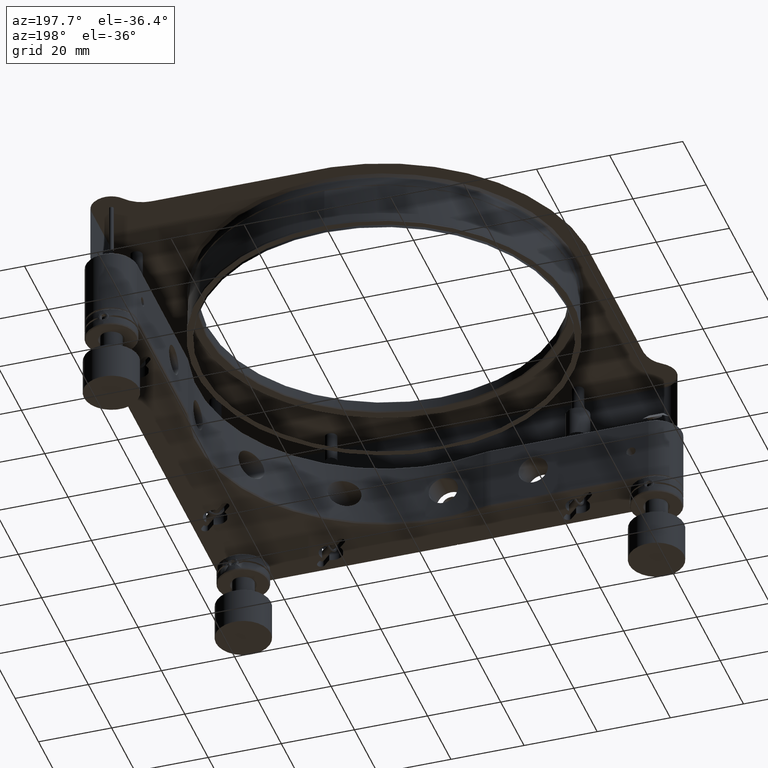
[diagram: clean part render]
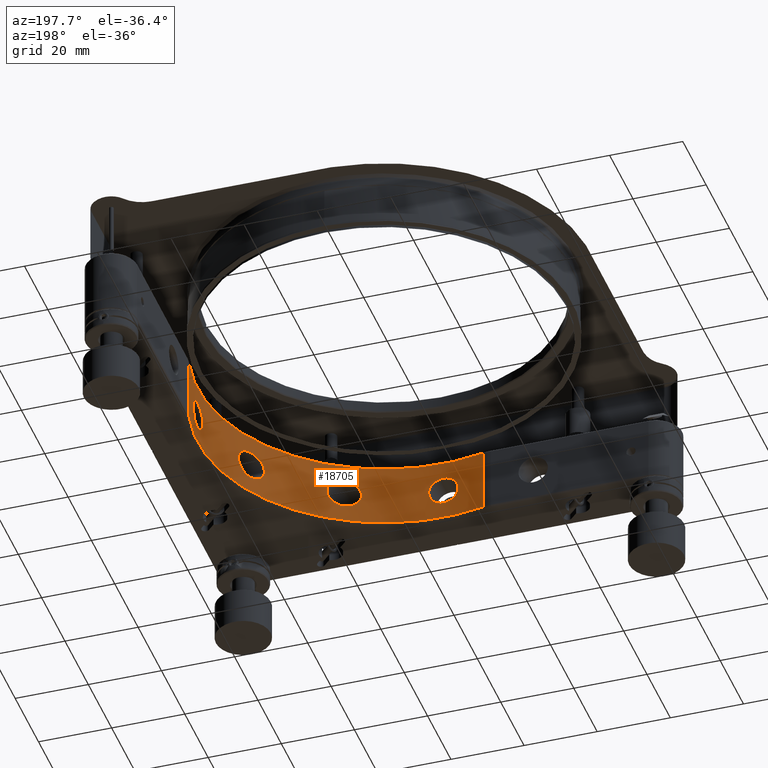
[diagram: same view with one face highlighted and labeled with its STEP entity id]
A machine part, auxiliary view. The second image highlights one B-rep face of the part: STEP entity #18705.
In plain terms, the highlighted cylindrical surface (partial cylindrical patch) has radius 51 mm, axis along (0, 0, 1).
Its self-contained STEP definition (entity closure, byte-faithful):
#22 = CARTESIAN_POINT ( 'NONE',  ( 0.2643418516428152065, -51.00000000000000000, -3.999999999999994227 ) ) ;
#139 = CARTESIAN_POINT ( 'NONE',  ( 1.041460305965775657, -50.99000936776741355, -3.870874825746110304 ) ) ;
#245 = CARTESIAN_POINT ( 'NONE',  ( 2.438328192093976554, -50.94214254767108230, 3.181643216295293453 ) ) ;
#329 = CARTESIAN_POINT ( 'NONE',  ( 42.13692247388138412, -28.73150742501794497, -1.466203192968444036 ) ) ;
#351 = CARTESIAN_POINT ( 'NONE',  ( 22.14287379948190448, -45.94281260937063394, 2.812044164580193684 ) ) ;
#354 = CARTESIAN_POINT ( 'NONE',  ( 1.775176064957068700, -50.96967208368307922, -3.594095108832024543 ) ) ;
#373 = ORIENTED_EDGE ( 'NONE', *, *, #14231, .F. ) ;
#417 = CARTESIAN_POINT ( 'NONE',  ( 50.87322838842136008, 3.595085773231252446, 1.772907567325785694 ) ) ;
#455 = CARTESIAN_POINT ( 'NONE',  ( 21.25809575348906222, -46.35849392485160081, 1.440376870804307208 ) ) ;
#528 = CARTESIAN_POINT ( 'NONE',  ( 50.99794641787443794, -0.5242465711881814094, -3.974054142921797261 ) ) ;
#545 = CARTESIAN_POINT ( 'NONE',  ( 46.45507703724306481, -21.04592532881353861, 0.6656972642966199061 ) ) ;
#567 = CARTESIAN_POINT ( 'NONE',  ( 21.95968344084829837, -46.03047269666583929, 2.613345173628228935 ) ) ;
#581 = CIRCLE ( 'NONE', #6379, 51.00000000000000711 ) ;
#635 = CARTESIAN_POINT ( 'NONE',  ( 51.00000004458414082, -0.2643327941617260590, 4.000000568447709348 ) ) ;
#676 = CARTESIAN_POINT ( 'NONE',  ( 22.75176425591999418, -45.64448943445603391, 3.318449024854553731 ) ) ;
#738 = CARTESIAN_POINT ( 'NONE',  ( 50.96109126579183624, 2.003623896652389380, 3.471856737960496542 ) ) ;
#851 = CARTESIAN_POINT ( 'NONE',  ( 50.96109145979701083, -2.003619012529236354, -3.471859581115384508 ) ) ;
#874 = CARTESIAN_POINT ( 'NONE',  ( 46.42070792123861622, -21.12158115173890138, -1.018848955257730449 ) ) ;
#961 = CARTESIAN_POINT ( 'NONE',  ( 50.84494052886554982, 3.974246806046050295, -0.5232299262243520488 ) ) ;
#1034 = EDGE_LOOP ( 'NONE', ( #8706, #373, #10215, #6912 ) ) ;
#1193 = CARTESIAN_POINT ( 'NONE',  ( 50.99000936776744908, 1.041460305965788091, -3.870874825746113412 ) ) ;
#1268 = CARTESIAN_POINT ( 'NONE',  ( -3.470864942281873144, -50.88196700384143867, -2.005553443854874107 ) ) ;
#1390 = CARTESIAN_POINT ( 'NONE',  ( -1.035550865290829181, -50.99012657086851874, -3.872412065324646768 ) ) ;
#1503 = CARTESIAN_POINT ( 'NONE',  ( 22.04892886690477383, -45.98794758452353193, -2.713491968009111854 ) ) ;
#1594 = CARTESIAN_POINT ( 'NONE',  ( 42.86481673129989645, -27.63430815597656931, 3.021030406531487689 ) ) ;
#1702 = FACE_BOUND ( 'NONE', #2830, .T. ) ;
#1708 = CARTESIAN_POINT ( 'NONE',  ( 45.40950592458667501, -23.21720212518657434, 3.589885126458869813 ) ) ;
#1736 = CARTESIAN_POINT ( 'NONE',  ( 4.000180473207248788, -50.84288107704849580, -0.2581632617003279395 ) ) ;
#1769 = VECTOR ( 'NONE', #18142, 1000.000000000000000 ) ;
#1823 = CARTESIAN_POINT ( 'NONE',  ( 42.99020142785091991, -27.43906843653294558, 3.180114322606836907 ) ) ;
#1851 = CARTESIAN_POINT ( 'NONE',  ( 3.471469353709270678, -50.88192132246089017, -2.004192328261631850 ) ) ;
#1962 = CARTESIAN_POINT ( 'NONE',  ( 24.14988693114169038, -44.92061231903917928, 3.916531526169040767 ) ) ;
#2070 = CARTESIAN_POINT ( 'NONE',  ( 25.00000000000000711, -44.45222154178574669, -3.999999999999991562 ) ) ;
#2071 = CARTESIAN_POINT ( 'NONE',  ( 0.5242542785430721608, -50.99794633650007114, 3.974053103854824798 ) ) ;
#2140 = CARTESIAN_POINT ( 'NONE',  ( 50.98426826390096522, -1.289606195030928326, -3.795475553868472574 ) ) ;
#2179 = CARTESIAN_POINT ( 'NONE',  ( 1.290741033015676775, -50.98423981943308547, -3.795096480804716510 ) ) ;
#2242 = CARTESIAN_POINT ( 'NONE',  ( 50.84288107702916903, -4.000180473452869201, 0.2581636155114718778 ) ) ;
#2285 = CARTESIAN_POINT ( 'NONE',  ( 21.21189721563936459, -46.37962752371469577, -1.314374127519348567 ) ) ;
#2354 = CARTESIAN_POINT ( 'NONE',  ( 50.93176742196465057, -2.643856155769596317, 3.013257923311236652 ) ) ;
#2371 = CARTESIAN_POINT ( 'NONE',  ( 46.46827430110300128, -21.01672661800330744, -0.4622976535235896467 ) ) ;
#2392 = CARTESIAN_POINT ( 'NONE',  ( 28.83500713554753503, -42.06599844814912359, -1.171254001327689087 ) ) ;
#2460 = CARTESIAN_POINT ( 'NONE',  ( 50.85873265471013838, 3.794643742710438694, 1.291712748671045130 ) ) ;
#2480 = CARTESIAN_POINT ( 'NONE',  ( 46.39563288142682751, -21.17664763398707706, 1.208236747625940133 ) ) ;
#2631 = VERTEX_POINT ( 'NONE', #9541 ) ;
#2793 = CARTESIAN_POINT ( 'NONE',  ( 50.91102904633111592, 3.016956970046681175, -2.639634276127742929 ) ) ;
#2830 = EDGE_LOOP ( 'NONE', ( #13472 ) ) ;
#2844 = EDGE_CURVE ( 'NONE', #4830, #4830, #8106, .T. ) ;
#2865 = CARTESIAN_POINT ( 'NONE',  ( -3.012896189205499731, -50.91126171441915460, -2.643950649210252912 ) ) ;
#2892 = VERTEX_POINT ( 'NONE', #11099 ) ;
#3101 = CARTESIAN_POINT ( 'NONE',  ( -3.974246734816910376, -50.84494053457044060, 0.5232306414502037040 ) ) ;
#3216 = CARTESIAN_POINT ( 'NONE',  ( 24.50570513562140107, -44.73021375861674898, -3.999999999999990674 ) ) ;
#3415 = CARTESIAN_POINT ( 'NONE',  ( 44.64255807279423749, -24.66007461377106935, 3.993157742379626285 ) ) ;
#3443 = CARTESIAN_POINT ( 'NONE',  ( -1.041453490481846433, -50.99000950939018395, 3.870876686039689041 ) ) ;
#3528 = CARTESIAN_POINT ( 'NONE',  ( 45.73823904516289218, -22.56242002078001008, 3.182554437311829965 ) ) ;
#3557 = CARTESIAN_POINT ( 'NONE',  ( 1.289612638224308050, -50.98426809839455132, 3.795473336771413297 ) ) ;
#3640 = CARTESIAN_POINT ( 'NONE',  ( 41.98925694458817048, -28.94655086885971329, -0.6666669425110099967 ) ) ;
#3663 = CARTESIAN_POINT ( 'NONE',  ( 25.97655679833705378, -43.88959329869727100, -3.886699752790084617 ) ) ;
#3666 = CARTESIAN_POINT ( 'NONE',  ( -3.182140358833142280, -50.90083496153494735, 2.437594978615438279 ) ) ;
#3694 = ORIENTED_EDGE ( 'NONE', *, *, #3974, .F. ) ;
#3756 = CARTESIAN_POINT ( 'NONE',  ( 44.45222154178573959, -24.99999999999999289, -3.999999999999991562 ) ) ;
#3847 = CARTESIAN_POINT ( 'NONE',  ( 50.93174824369287279, 2.644075164088409924, 3.012786885334071574 ) ) ;
#3863 = CARTESIAN_POINT ( 'NONE',  ( 44.59120638312982265, -24.75287260166489389, -3.999999999999991562 ) ) ;
#3883 = CARTESIAN_POINT ( 'NONE',  ( 29.00387413615989729, -41.94967595931453275, 0.2195120870971091209 ) ) ;
#3974 = EDGE_CURVE ( 'NONE', #19948, #19948, #13017, .T. ) ;
#3993 = CARTESIAN_POINT ( 'NONE',  ( 21.03959349200306761, -46.45794227444960001, 0.6282988356155494447 ) ) ;
#4007 = DIRECTION ( 'NONE',  ( 1.000000000000000000, 0.000000000000000000, 6.802837160693364103E-17 ) ) ;
#4079 = CARTESIAN_POINT ( 'NONE',  ( 46.47840516126743182, -20.99423522434712552, -0.1823093768099479095 ) ) ;
#4100 = CARTESIAN_POINT ( 'NONE',  ( 23.19705833438060694, -45.41980489963018641, 3.579953804435291875 ) ) ;
#4167 = CARTESIAN_POINT ( 'NONE',  ( 50.98426809839455132, 1.289612638224332919, 3.795473336771408857 ) ) ;
#4275 = CARTESIAN_POINT ( 'NONE',  ( 50.91126156222613730, 3.012898732924461864, 2.643947714107129698 ) ) ;
#4297 = CARTESIAN_POINT ( 'NONE',  ( 46.28536281821492793, -21.41679356844925763, -1.799288961521885444 ) ) ;
#4349 = VERTEX_POINT ( 'NONE', #13534 ) ;
#4499 = CARTESIAN_POINT ( 'NONE',  ( 50.85857193245664831, 3.796805699459112393, -1.285668065311143415 ) ) ;
#4575 = CARTESIAN_POINT ( 'NONE',  ( -1.773926735754461692, -50.96971530703164888, -3.594704821602309419 ) ) ;
#4615 = CARTESIAN_POINT ( 'NONE',  ( 51.00000000000000711, 4.878909776184769953E-15, -3.999999999999994671 ) ) ;
#4621 = VERTEX_POINT ( 'NONE', #19112 ) ;
#4699 = CIRCLE ( 'NONE', #17779, 50.99999999999997868 ) ;
#4811 = CARTESIAN_POINT ( 'NONE',  ( -3.974349236055138235, -50.84493296766510184, -0.5232957574075265406 ) ) ;
#4815 = B_SPLINE_CURVE_WITH_KNOTS ( 'NONE', 3,
 ( #19643, #7451, #528, #16437, #2140, #10973, #851, #14189, #14609, #5655, #9046, #19751, #10864, #17819, #21371, #17928, #11191, #2242, #21587, #9154, #19538, #17715, #5972, #21264, #7335, #2354, #21152, #9261, #16005, #12482, #19433, #9366, #635, #14507, #12918, #16117, #4167, #16330, #738, #11079, #3847, #4275, #21476, #10762, #417, #2460, #18147, #14296, #14947, #18600, #961, #9591, #4499, #7882, #11533, #20440, #2793, #13485, #18256, #8113, #20202, #18490, #1193, #22164, #11418, #4615 ),
 .UNSPECIFIED., .T., .F.,
 ( 4, 2, 2, 2, 2, 2, 2, 2, 2, 2, 2, 2, 2, 2, 2, 2, 2, 2, 2, 2, 2, 2, 2, 2, 2, 2, 2, 2, 2, 2, 2, 2, 4 ),
 ( 0.000000000000000000, 0.0007817464588609633787, 0.001563492917721926324, 0.002345239376582889702, 0.003126985835443852647, 0.003908732294304815592, 0.004690478753165779405, 0.005472225212026743217, 0.006253971670887705295, 0.007035718129748667372, 0.007817464588609629450, 0.008599211047470594130, 0.009380957506331557075, 0.01016270396519252175, 0.01094445042405348470, 0.01172619688291444764, 0.01250794334177541059, 0.01328968980063637353, 0.01407143625949733648, 0.01485318271835829942, 0.01563492917721926237, 0.01641667563608022531, 0.01719842209494118826, 0.01798016855380215120, 0.01876191501266311762, 0.01954366147152408056, 0.02032540793038504351, 0.02110715438924600645, 0.02188890084810697287, 0.02267064730696793581, 0.02345239376582889876, 0.02423414022468986170, 0.02501588668355082118 ),
 .UNSPECIFIED. ) ;
#4830 = VERTEX_POINT ( 'NONE', #18463 ) ;
#5120 = CARTESIAN_POINT ( 'NONE',  ( 42.07354800861015320, -28.82399538433995190, -1.205466988610053303 ) ) ;
#5234 = CARTESIAN_POINT ( 'NONE',  ( 42.23155187309143344, -28.59216517386449752, 1.780635445795642591 ) ) ;
#5344 = CARTESIAN_POINT ( 'NONE',  ( 45.28911587951181161, -23.45141848776656346, 3.696762460761027658 ) ) ;
#5372 = CARTESIAN_POINT ( 'NONE',  ( 3.182142488891115839, -50.90083482733105313, -2.437592160883215175 ) ) ;
#5481 = CARTESIAN_POINT ( 'NONE',  ( 0.2643499978827399399, -50.99999995541441677, 3.999999431533800553 ) ) ;
#5565 = CARTESIAN_POINT ( 'NONE',  ( 41.94819773876479019, -29.00601294512484429, 0.1775567689913213898 ) ) ;
#5587 = CARTESIAN_POINT ( 'NONE',  ( 27.31612651793911084, -43.06845577151160143, -3.270735583096520571 ) ) ;
#5588 = CARTESIAN_POINT ( 'NONE',  ( 2.643859677956250209, -50.93176723734178779, -3.013254797407388885 ) ) ;
#5655 = CARTESIAN_POINT ( 'NONE',  ( 50.91126171441917592, -3.012896189205488628, -2.643950649210245807 ) ) ;
#5673 = CARTESIAN_POINT ( 'NONE',  ( 44.72903172122643412, -24.50288098466206677, -3.976800182109562432 ) ) ;
#5694 = CARTESIAN_POINT ( 'NONE',  ( 23.90786857165882395, -45.04981533723354659, 3.856267172187326953 ) ) ;
#5708 = CARTESIAN_POINT ( 'NONE',  ( 0.000000000000000000, 0.000000000000000000, 8.699999999999992184 ) ) ;
#5800 = CARTESIAN_POINT ( 'NONE',  ( 28.44251452986881645, -42.33267660686850320, 2.053817482602312339 ) ) ;
#5818 = VERTEX_POINT ( 'NONE', #14244 ) ;
#5906 = CARTESIAN_POINT ( 'NONE',  ( 28.14419088521808376, -42.53159603047974002, 2.486591284773677746 ) ) ;
#5972 = CARTESIAN_POINT ( 'NONE',  ( 50.88192141905476262, -3.471467953167386433, 2.004194799219288559 ) ) ;
#6102 = CARTESIAN_POINT ( 'NONE',  ( 45.93297508661292028, -22.16328287594493673, 2.832575658237597604 ) ) ;
#6379 = AXIS2_PLACEMENT_3D ( 'NONE', #12321, #19272, #9001 ) ;
#6602 = CARTESIAN_POINT ( 'NONE',  ( -3.596608637842334311, -50.87312137945681201, 1.770051522970641500 ) ) ;
#6685 = CYLINDRICAL_SURFACE ( 'NONE', #13793, 51.00000000000000711 ) ;
#6827 = CARTESIAN_POINT ( 'NONE',  ( 21.57072514087623460, -46.21373423124951074, -2.063717170320820582 ) ) ;
#6912 = ORIENTED_EDGE ( 'NONE', *, *, #19678, .F. ) ;
#6937 = CARTESIAN_POINT ( 'NONE',  ( 1.035557716345357981, -50.99012642958663122, 3.872410210314304546 ) ) ;
#7027 = CARTESIAN_POINT ( 'NONE',  ( 42.51663757599928317, -28.16677216133664530, 2.457872710427946750 ) ) ;
#7058 = CARTESIAN_POINT ( 'NONE',  ( -3.794707603699265519E-15, -51.00000000000000711, -3.999999999999994227 ) ) ;
#7165 = CARTESIAN_POINT ( 'NONE',  ( 3.974349304430777607, -50.84493296217718239, 0.5232950534948871413 ) ) ;
#7247 = CARTESIAN_POINT ( 'NONE',  ( 42.08972716149866500, -28.80053385633270224, 1.276814643563314755 ) ) ;
#7266 = CARTESIAN_POINT ( 'NONE',  ( 27.60816768907120888, -42.88165776416249741, 3.043440688396227500 ) ) ;
#7335 = CARTESIAN_POINT ( 'NONE',  ( 50.91102919912678715, -3.016954421790179808, 2.639637229173623201 ) ) ;
#7378 = CARTESIAN_POINT ( 'NONE',  ( 24.89189507061578510, -44.51374198359376066, 4.006082388395618032 ) ) ;
#7391 = DIRECTION ( 'NONE',  ( 0.000000000000000000, 0.000000000000000000, 1.000000000000000000 ) ) ;
#7451 = CARTESIAN_POINT ( 'NONE',  ( 51.00000000000000711, -0.2643418516428144849, -3.999999999999994227 ) ) ;
#7469 = CARTESIAN_POINT ( 'NONE',  ( 46.47207966822504233, -21.00823339313170024, 0.3810347792856133564 ) ) ;
#7490 = CARTESIAN_POINT ( 'NONE',  ( 21.37559845394299529, -46.30429136610482033, -1.697951396811109737 ) ) ;
#7578 = CARTESIAN_POINT ( 'NONE',  ( 44.99378513541785196, -24.01326205359960042, -3.884380932525897112 ) ) ;
#7599 = CARTESIAN_POINT ( 'NONE',  ( 26.66805882125758842, -43.47281913016014698, -3.643834439284061588 ) ) ;
#7682 = CARTESIAN_POINT ( 'NONE',  ( 45.48582902877590328, -23.06727417906371613, -3.511666105846367181 ) ) ;
#7882 = CARTESIAN_POINT ( 'NONE',  ( 50.87312130222163375, 3.596609722746673565, -1.770049263678889151 ) ) ;
#8106 = B_SPLINE_CURVE_WITH_KNOTS ( 'NONE', 3,
 ( #3756, #10553, #17625, #13985, #13762, #8958, #12501, #20943, #19109, #14204, #8850, #329, #5120, #12162, #3640, #15584, #17507, #5565, #19448, #17399, #7247, #5234, #10214, #7027, #17169, #1594, #1823, #13870, #15468, #8736, #22440, #15697, #12046, #18989, #3415, #10330, #17284, #5344, #1708, #20830, #3528, #6102, #21718, #19883, #17838, #14314, #2480, #545, #7469, #4079, #2371, #874, #14419, #4297, #21388, #21282, #19555, #14525, #21494, #7682, #9388, #10777, #7578, #5673, #3863, #13055 ),
 .UNSPECIFIED., .T., .F.,
 ( 4, 2, 2, 2, 2, 2, 2, 2, 2, 2, 2, 2, 2, 2, 2, 2, 2, 2, 2, 2, 2, 2, 2, 2, 2, 2, 2, 2, 2, 2, 2, 2, 4 ),
 ( 0.000000000000000000, 0.001669323194138108918, 0.002503984791207167389, 0.003338646388276226076, 0.004173307985345283896, 0.005007969582414342584, 0.005842631179483401271, 0.006259961978017930181, 0.006677292776552457357, 0.007511954373621513442, 0.008346615970690569528, 0.009181277567759625613, 0.01001593916482868170, 0.01085060076189773605, 0.01168526235896679213, 0.01251992395603584995, 0.01335458555310490431, 0.01418924715017395866, 0.01502390874724301127, 0.01585857034431206736, 0.01669323194138111824, 0.01752789353845017606, 0.01836255513551923041, 0.01919721673258828476, 0.02003187832965733911, 0.02086653992672639346, 0.02170120152379544781, 0.02253586312086450216, 0.02337052471793355651, 0.02420518631500261086, 0.02503984791207166521, 0.02587450950914072303, 0.02670917110620977739 ),
 .UNSPECIFIED. ) ;
#8113 = CARTESIAN_POINT ( 'NONE',  ( 50.96088043794100741, 2.008882008245621797, -3.468752934531369458 ) ) ;
#8306 = CARTESIAN_POINT ( 'NONE',  ( -3.872274229690162883, -50.85280825444433361, 1.036291321700952617 ) ) ;
#8419 = CARTESIAN_POINT ( 'NONE',  ( 21.87437600442352093, -46.07104060837720283, -2.510619664697341769 ) ) ;
#8531 = CARTESIAN_POINT ( 'NONE',  ( 22.63162021815537273, -45.70553702955495368, -3.267753843407037451 ) ) ;
#8706 = ORIENTED_EDGE ( 'NONE', *, *, #21646, .T. ) ;
#8736 = CARTESIAN_POINT ( 'NONE',  ( 43.66406249941318407, -26.35373789006742840, 3.771958615698910222 ) ) ;
#8766 = CARTESIAN_POINT ( 'NONE',  ( 2.441791047203368592, -50.94197285554388799, -3.178916533297212688 ) ) ;
#8850 = CARTESIAN_POINT ( 'NONE',  ( 42.29464325481112752, -28.49882289555150550, -1.957584688231774228 ) ) ;
#8873 = CARTESIAN_POINT ( 'NONE',  ( 25.24714743218930479, -44.31322543337024911, -3.999999999999992450 ) ) ;
#8875 = CARTESIAN_POINT ( 'NONE',  ( -2.008877113196142705, -50.96088063299767157, 3.468755796618903542 ) ) ;
#8958 = CARTESIAN_POINT ( 'NONE',  ( 43.07976540808162014, -27.29827165653997056, -3.283130313487088614 ) ) ;
#8979 = CARTESIAN_POINT ( 'NONE',  ( 28.97754222636080712, -41.96792056883602129, 0.5062693067950541082 ) ) ;
#9001 = DIRECTION ( 'NONE',  ( 1.000000000000000000, 0.000000000000000000, 0.000000000000000000 ) ) ;
#9046 = CARTESIAN_POINT ( 'NONE',  ( 50.90107073486001354, -3.178437929604356338, -2.442678937431558062 ) ) ;
#9087 = CARTESIAN_POINT ( 'NONE',  ( 21.02148673580734695, -46.46612357740982446, -0.4998321812652857243 ) ) ;
#9088 = CARTESIAN_POINT ( 'NONE',  ( -0.5288929798147758987, -50.99790159757987595, 3.973485108474053895 ) ) ;
#9154 = CARTESIAN_POINT ( 'NONE',  ( 50.85280825444434072, -3.872274229690143343, 1.036291321700962609 ) ) ;
#9194 = CARTESIAN_POINT ( 'NONE',  ( 20.99587377673898558, -46.47766464401249920, -0.2138646988442621522 ) ) ;
#9261 = CARTESIAN_POINT ( 'NONE',  ( 50.96088063299767867, -2.008877113196118280, 3.468755796618908871 ) ) ;
#9303 = CARTESIAN_POINT ( 'NONE',  ( 27.51643537602536682, -42.94060931714819418, -3.119721791529368016 ) ) ;
#9363 = DIRECTION ( 'NONE',  ( 0.000000000000000000, 0.000000000000000000, 1.000000000000000000 ) ) ;
#9366 = CARTESIAN_POINT ( 'NONE',  ( 50.99790159757988306, -0.5288929798147503636, 3.973485108474055671 ) ) ;
#9388 = CARTESIAN_POINT ( 'NONE',  ( 45.36739485598351962, -23.29958168227874182, -3.629479299811334769 ) ) ;
#9541 = CARTESIAN_POINT ( 'NONE',  ( 51.00000000000000711, 4.851892137267207984E-15, -3.999999999999994671 ) ) ;
#9591 = CARTESIAN_POINT ( 'NONE',  ( 50.85280822814642931, 3.872274573245071405, -1.036289949996455739 ) ) ;
#9706 = CARTESIAN_POINT ( 'NONE',  ( -11.24034119093744799, -49.74590163934426812, 8.699999999999976197 ) ) ;
#9893 = CARTESIAN_POINT ( 'NONE',  ( -3.794707603699265519E-15, -51.00000000000000711, -3.999999999999994227 ) ) ;
#10130 = CARTESIAN_POINT ( 'NONE',  ( 24.01929092853620773, -44.99289986258148133, -3.911379781381151943 ) ) ;
#10214 = CARTESIAN_POINT ( 'NONE',  ( 42.31948893798674760, -28.46212186020470725, 2.020716805387625215 ) ) ;
#10215 = ORIENTED_EDGE ( 'NONE', *, *, #18307, .F. ) ;
#10330 = CARTESIAN_POINT ( 'NONE',  ( 44.90871862925317970, -24.17197266087580587, 3.921125954288148474 ) ) ;
#10355 = CARTESIAN_POINT ( 'NONE',  ( -2.441787137751331827, -50.94197304502912971, 3.178919565892265098 ) ) ;
#10471 = CARTESIAN_POINT ( 'NONE',  ( 3.470866369463427414, -50.88196690545827749, 2.005550931089963296 ) ) ;
#10553 = CARTESIAN_POINT ( 'NONE',  ( 44.17425185909757346, -25.49425479667018735, -3.999999999999990674 ) ) ;
#10578 = CARTESIAN_POINT ( 'NONE',  ( 25.49462011959083085, -44.17128306920727709, -3.976864227756935932 ) ) ;
#10580 = CARTESIAN_POINT ( 'NONE',  ( 2.003623896652364067, -50.96109126579182913, 3.471856737960501871 ) ) ;
#10762 = CARTESIAN_POINT ( 'NONE',  ( 50.88196690545824197, 3.470866369463446510, 2.005550931089959743 ) ) ;
#10777 = CARTESIAN_POINT ( 'NONE',  ( 45.12141992891680786, -23.77243122161148392, -3.815444579249795964 ) ) ;
#10797 = CARTESIAN_POINT ( 'NONE',  ( 26.89207301226206681, -43.33450195386893711, -3.533017551315582594 ) ) ;
#10864 = CARTESIAN_POINT ( 'NONE',  ( 50.87322846486917882, -3.595084698763268971, -1.772909798008139193 ) ) ;
#10904 = CARTESIAN_POINT ( 'NONE',  ( 23.43237610055898656, -45.29896016290562244, 3.688645126596147961 ) ) ;
#10973 = CARTESIAN_POINT ( 'NONE',  ( 50.96971530703165598, -1.773926735754453254, -3.594704821602307643 ) ) ;
#11013 = CARTESIAN_POINT ( 'NONE',  ( 28.78813438591593510, -42.09822155405647237, 1.313605568399647927 ) ) ;
#11079 = CARTESIAN_POINT ( 'NONE',  ( 50.94214254767107519, 2.438328192094000535, 3.181643216295288568 ) ) ;
#11099 = CARTESIAN_POINT ( 'NONE',  ( 49.74590163934428233, 11.24034119093744799, -8.699999999999953104 ) ) ;
#11185 = CARTESIAN_POINT ( 'NONE',  ( -11.24034119093744621, -49.74590163934428233, -9.000000000000001776 ) ) ;
#11191 = CARTESIAN_POINT ( 'NONE',  ( 50.84290962620590193, -3.999817592664169474, -0.2637261799324808198 ) ) ;
#11279 = CARTESIAN_POINT ( 'NONE',  ( -3.453503973595536384E-15, -51.00000000000000711, -3.999999999999994671 ) ) ;
#11418 = CARTESIAN_POINT ( 'NONE',  ( 51.00000000000000711, 0.2643418516428233112, -3.999999999999995559 ) ) ;
#11492 = CARTESIAN_POINT ( 'NONE',  ( -2.003619012529245236, -50.96109145979704635, -3.471859581115388949 ) ) ;
#11517 = VERTEX_POINT ( 'NONE', #9706 ) ;
#11533 = CARTESIAN_POINT ( 'NONE',  ( 50.88192132246089727, 3.471469353709286665, -2.004192328261634071 ) ) ;
#11733 = CARTESIAN_POINT ( 'NONE',  ( -3.999817592664185906, -50.84290962620589482, -0.2637261799324902012 ) ) ;
#11818 = FACE_OUTER_BOUND ( 'NONE', #1034, .T. ) ;
#11929 = DIRECTION ( 'NONE',  ( 1.000000000000000000, 0.000000000000000000, 0.000000000000000000 ) ) ;
#12046 = CARTESIAN_POINT ( 'NONE',  ( 44.22542260502689970, -25.40063583221816756, 3.987524441275342113 ) ) ;
#12162 = CARTESIAN_POINT ( 'NONE',  ( 42.00690502226552780, -28.92095206658455808, -0.8032171135917388627 ) ) ;
#12188 = CARTESIAN_POINT ( 'NONE',  ( 3.016956970046668296, -50.91102904633113013, -2.639634276127739376 ) ) ;
#12297 = CARTESIAN_POINT ( 'NONE',  ( 3.794643742710420931, -50.85873265471013838, 1.291712748671049349 ) ) ;
#12321 = CARTESIAN_POINT ( 'NONE',  ( 0.000000000000000000, 0.000000000000000000, -8.699999999999949551 ) ) ;
#12353 = EDGE_LOOP ( 'NONE', ( #16316 ) ) ;
#12405 = CARTESIAN_POINT ( 'NONE',  ( 21.63566396085211352, -46.18365683306001301, 2.180445090358534177 ) ) ;
#12409 = CARTESIAN_POINT ( 'NONE',  ( -1.290734677114140583, -50.98423998245103661, 3.795098663708398767 ) ) ;
#12482 = CARTESIAN_POINT ( 'NONE',  ( 50.98423998245104372, -1.290734677114113937, 3.795098663708401432 ) ) ;
#12501 = CARTESIAN_POINT ( 'NONE',  ( 42.95275304246160175, -27.49746683720516316, -3.134711865247252316 ) ) ;
#12632 = CARTESIAN_POINT ( 'NONE',  ( 26.10030315334561735, -43.81843936482649582, 3.876972756483121785 ) ) ;
#12739 = CARTESIAN_POINT ( 'NONE',  ( 21.00524009509625145, -46.47343235610433965, 0.3473589258846552230 ) ) ;
#12918 = CARTESIAN_POINT ( 'NONE',  ( 50.99794633650007114, 0.5242542785430985841, 3.974053103854824798 ) ) ;
#13017 = B_SPLINE_CURVE_WITH_KNOTS ( 'NONE', 3,
 ( #9893, #22120, #20161, #1390, #16851, #4575, #11492, #18447, #16737, #2865, #17203, #1268, #15148, #13446, #20398, #4811, #11733, #18679, #3101, #8306, #22238, #6602, #20517, #3666, #17647, #20975, #10355, #8875, #17753, #12409, #3443, #9088, #19140, #5481, #2071, #6937, #3557, #17312, #10580, #245, #21191, #19361, #21084, #10471, #17427, #12297, #13897, #7165, #19250, #1736, #14225, #19468, #14012, #14123, #1851, #5372, #12188, #5588, #8766, #15723, #354, #2179, #139, #20859, #22, #7058 ),
 .UNSPECIFIED., .T., .F.,
 ( 4, 2, 2, 2, 2, 2, 2, 2, 2, 2, 2, 2, 2, 2, 2, 2, 2, 2, 2, 2, 2, 2, 2, 2, 2, 2, 2, 2, 2, 2, 2, 2, 4 ),
 ( 0.000000000000000000, 0.0007817464588609645713, 0.001563492917721929143, 0.002345239376582894039, 0.003126985835443858285, 0.003908732294304822531, 0.004690478753165788078, 0.005472225212026752758, 0.006253971670887716570, 0.007035718129748681250, 0.007817464588609645063, 0.008599211047470608008, 0.009380957506331570953, 0.01016270396519253563, 0.01094445042405349858, 0.01172619688291446152, 0.01250794334177542273, 0.01328968980063638915, 0.01407143625949735209, 0.01485318271835831504, 0.01563492917721927625, 0.01641667563608023919, 0.01719842209494119867, 0.01798016855380216161, 0.01876191501266312109, 0.01954366147152408403, 0.02032540793038504698, 0.02110715438924600645, 0.02188890084810696940, 0.02267064730696793234, 0.02345239376582889529, 0.02423414022468985476, 0.02501588668355081771 ),
 .UNSPECIFIED. ) ;
#13055 = CARTESIAN_POINT ( 'NONE',  ( 44.45222154178573959, -24.99999999999999289, -3.999999999999991562 ) ) ;
#13446 = CARTESIAN_POINT ( 'NONE',  ( -3.794643193740715681, -50.85873269618752346, -1.291714432586568373 ) ) ;
#13472 = ORIENTED_EDGE ( 'NONE', *, *, #21066, .F. ) ;
#13485 = CARTESIAN_POINT ( 'NONE',  ( 50.93176723734175937, 2.643859677956263976, -3.013254797407393326 ) ) ;
#13534 = CARTESIAN_POINT ( 'NONE',  ( 49.74590163934427522, 11.24034119093744621, 8.700000000000008171 ) ) ;
#13649 = CARTESIAN_POINT ( 'NONE',  ( 0.000000000000000000, 0.000000000000000000, -9.000000000000001776 ) ) ;
#13762 = CARTESIAN_POINT ( 'NONE',  ( 43.34388799797844172, -26.87692683824363726, -3.540924018737713563 ) ) ;
#13793 = AXIS2_PLACEMENT_3D ( 'NONE', #13649, #20600, #11929 ) ;
#13870 = CARTESIAN_POINT ( 'NONE',  ( 43.25156113196214136, -27.02521702262672676, 3.458421309528856291 ) ) ;
#13897 = CARTESIAN_POINT ( 'NONE',  ( 3.871498313183480366, -50.85286777688099136, 1.039610945334407788 ) ) ;
#13985 = CARTESIAN_POINT ( 'NONE',  ( 43.48232582047493366, -26.65254922259305204, -3.650835261940553078 ) ) ;
#14012 = CARTESIAN_POINT ( 'NONE',  ( 3.796805699459098182, -50.85857193245669094, -1.285668065311138086 ) ) ;
#14047 = VECTOR ( 'NONE', #9363, 1000.000000000000000 ) ;
#14121 = CARTESIAN_POINT ( 'NONE',  ( 27.41312352165618549, -43.00674703191210568, 3.199712091505374278 ) ) ;
#14123 = CARTESIAN_POINT ( 'NONE',  ( 3.596609722746659354, -50.87312130222164797, -1.770049263678885376 ) ) ;
#14189 = CARTESIAN_POINT ( 'NONE',  ( 50.94214273904355395, -2.438324235223479963, -3.181646275479589558 ) ) ;
#14204 = CARTESIAN_POINT ( 'NONE',  ( 42.38713040075415961, -28.36135418054419333, -2.183944612765307713 ) ) ;
#14223 = CARTESIAN_POINT ( 'NONE',  ( 28.74513615994610305, -42.12761786467843450, -1.431095975260034292 ) ) ;
#14225 = CARTESIAN_POINT ( 'NONE',  ( 3.974246806046033420, -50.84494052886552851, -0.5232299262243468307 ) ) ;
#14231 = EDGE_CURVE ( 'NONE', #2892, #4349, #18486, .T. ) ;
#14244 = CARTESIAN_POINT ( 'NONE',  ( 25.00000000000000355, -44.45222154178573248, -3.999999999999991562 ) ) ;
#14296 = CARTESIAN_POINT ( 'NONE',  ( 50.84493296217719660, 3.974349304430793151, 0.5232950534948836996 ) ) ;
#14314 = CARTESIAN_POINT ( 'NONE',  ( 46.35329981913756825, -21.26944208285208049, 1.470048279604939001 ) ) ;
#14382 = ORIENTED_EDGE ( 'NONE', *, *, #14532, .F. ) ;
#14419 = CARTESIAN_POINT ( 'NONE',  ( 46.38373896984123945, -21.20289171657937999, -1.287935472816738702 ) ) ;
#14440 = CARTESIAN_POINT ( 'NONE',  ( 26.77971742563968149, -43.40411383577910698, 3.590682676152003872 ) ) ;
#14507 = CARTESIAN_POINT ( 'NONE',  ( 50.99999995541440256, 0.2643499978827667518, 3.999999431533799665 ) ) ;
#14525 = CARTESIAN_POINT ( 'NONE',  ( 45.80693443297594314, -22.42255694791982989, -3.070652352638731042 ) ) ;
#14532 = EDGE_CURVE ( 'NONE', #5818, #5818, #20625, .T. ) ;
#14546 = CARTESIAN_POINT ( 'NONE',  ( 26.21118125884099115, -43.74980390166169997, -3.820077173346127175 ) ) ;
#14607 = CARTESIAN_POINT ( 'NONE',  ( 49.74590163934427522, 11.24034119093744621, -9.000000000000001776 ) ) ;
#14609 = CARTESIAN_POINT ( 'NONE',  ( 50.93174842482533649, -2.644071706916093056, -3.012789951369672536 ) ) ;
#14947 = CARTESIAN_POINT ( 'NONE',  ( 50.84290962618656096, 3.999817592909834296, 0.2637258261328530584 ) ) ;
#15148 = CARTESIAN_POINT ( 'NONE',  ( -3.595084698763283626, -50.87322846486916461, -1.772909798008149629 ) ) ;
#15347 = FACE_BOUND ( 'NONE', #12353, .T. ) ;
#15468 = CARTESIAN_POINT ( 'NONE',  ( 43.38857532424587049, -26.80487616205822832, 3.578086096390543425 ) ) ;
#15495 = CARTESIAN_POINT ( 'NONE',  ( 21.64282744081126353, -46.18003137122883572, -2.178893417185016723 ) ) ;
#15584 = CARTESIAN_POINT ( 'NONE',  ( 41.96370680206094761, -28.98357840903693372, -0.3883447331806665348 ) ) ;
#15697 = CARTESIAN_POINT ( 'NONE',  ( 44.08359411812101314, -25.64591666275752857, 3.955041781202663476 ) ) ;
#15723 = CARTESIAN_POINT ( 'NONE',  ( 2.008882008245609363, -50.96088043794100741, -3.468752934531369014 ) ) ;
#15939 = CARTESIAN_POINT ( 'NONE',  ( 21.43727791495081902, -46.27578773286258951, -1.823695688210652310 ) ) ;
#16005 = CARTESIAN_POINT ( 'NONE',  ( 50.96967227619848728, -1.775170597939108807, 3.594097831472963023 ) ) ;
#16117 = CARTESIAN_POINT ( 'NONE',  ( 50.99012642958664543, 1.035557716345382850, 3.872410210314303214 ) ) ;
#16155 = CARTESIAN_POINT ( 'NONE',  ( 21.16697648452290181, -46.40004311623516031, 1.177926086484168744 ) ) ;
#16269 = CARTESIAN_POINT ( 'NONE',  ( 27.00003063504459533, -43.26728529948594115, 3.472923848600650398 ) ) ;
#16316 = ORIENTED_EDGE ( 'NONE', *, *, #2844, .F. ) ;
#16330 = CARTESIAN_POINT ( 'NONE',  ( 50.96971511736533955, 1.773932112641138037, 3.594702138780233369 ) ) ;
#16389 = EDGE_LOOP ( 'NONE', ( #14382 ) ) ;
#16437 = CARTESIAN_POINT ( 'NONE',  ( 50.99012657086851164, -1.035550865290820521, -3.872412065324644104 ) ) ;
#16546 = LINE ( 'NONE', #11185, #1769 ) ;
#16673 = EDGE_LOOP ( 'NONE', ( #3694 ) ) ;
#16737 = CARTESIAN_POINT ( 'NONE',  ( -2.644071706916102826, -50.93174842482532227, -3.012789951369677421 ) ) ;
#16851 = CARTESIAN_POINT ( 'NONE',  ( -1.289606195030936098, -50.98426826390093680, -3.795475553868473906 ) ) ;
#17084 = CARTESIAN_POINT ( 'NONE',  ( 23.06822568034582588, -45.48784825329263271, -3.539622869031857633 ) ) ;
#17169 = CARTESIAN_POINT ( 'NONE',  ( 42.62706719801035860, -27.99965433293258243, 2.658623339390383755 ) ) ;
#17203 = CARTESIAN_POINT ( 'NONE',  ( -3.178437929604366996, -50.90107073486002065, -2.442678937431564279 ) ) ;
#17280 = FACE_BOUND ( 'NONE', #16673, .T. ) ;
#17284 = CARTESIAN_POINT ( 'NONE',  ( 45.03802107661486787, -23.93010037042474636, 3.862573258070044258 ) ) ;
#17312 = CARTESIAN_POINT ( 'NONE',  ( 1.773932112641111836, -50.96971511736533955, 3.594702138780237366 ) ) ;
#17399 = CARTESIAN_POINT ( 'NONE',  ( 42.03460249895795897, -28.88072206079799287, 1.009462520443054290 ) ) ;
#17427 = CARTESIAN_POINT ( 'NONE',  ( 3.595085773231233794, -50.87322838842136719, 1.772907567325789024 ) ) ;
#17507 = CARTESIAN_POINT ( 'NONE',  ( 41.95585027386903221, -28.99494176442677684, -0.2456762697518363736 ) ) ;
#17531 = CARTESIAN_POINT ( 'NONE',  ( 21.49201135418588393, -46.25051396467452491, 1.941790045510546125 ) ) ;
#17625 = CARTESIAN_POINT ( 'NONE',  ( 43.89661836505997172, -25.96865517109085886, -3.911492724166192314 ) ) ;
#17646 = CARTESIAN_POINT ( 'NONE',  ( 28.96117938128395153, -41.97923237497147397, -0.6230357731443180169 ) ) ;
#17647 = CARTESIAN_POINT ( 'NONE',  ( -3.016954421790202012, -50.91102919912680136, 2.639637229173615651 ) ) ;
#17715 = CARTESIAN_POINT ( 'NONE',  ( 50.87312137945677648, -3.596608637842312550, 1.770051522970649716 ) ) ;
#17752 = CARTESIAN_POINT ( 'NONE',  ( 27.89245188262076169, -42.69732160577076741, -2.774677128059907627 ) ) ;
#17753 = CARTESIAN_POINT ( 'NONE',  ( -1.775170597939133454, -50.96967227619847307, 3.594097831472959026 ) ) ;
#17779 = AXIS2_PLACEMENT_3D ( 'NONE', #5708, #7391, #4007 ) ;
#17819 = CARTESIAN_POINT ( 'NONE',  ( 50.85873269618752346, -3.794643193740699694, -1.291714432586558825 ) ) ;
#17838 = CARTESIAN_POINT ( 'NONE',  ( 46.24211133694547016, -21.51010715315475963, 1.974525825382621225 ) ) ;
#17857 = CARTESIAN_POINT ( 'NONE',  ( 25.62864675544183868, -44.09638452116904261, 3.980745454102070813 ) ) ;
#17928 = CARTESIAN_POINT ( 'NONE',  ( 50.84493296766508763, -3.974349236055121803, -0.5232957574075163265 ) ) ;
#17967 = CARTESIAN_POINT ( 'NONE',  ( 28.86939414832509598, -42.04238803709066730, 1.051161119140906486 ) ) ;
#18142 = DIRECTION ( 'NONE',  ( -0.000000000000000000, -0.000000000000000000, -1.000000000000000000 ) ) ;
#18147 = CARTESIAN_POINT ( 'NONE',  ( 50.85286777688097715, 3.871498313183498574, 1.039610945334400016 ) ) ;
#18256 = CARTESIAN_POINT ( 'NONE',  ( 50.94197285554386667, 2.441791047203381471, -3.178916533297214020 ) ) ;
#18307 = EDGE_CURVE ( 'NONE', #4621, #2892, #581, .T. ) ;
#18447 = CARTESIAN_POINT ( 'NONE',  ( -2.438324235223487957, -50.94214273904353973, -3.181646275479593555 ) ) ;
#18463 = CARTESIAN_POINT ( 'NONE',  ( 44.45222154178574669, -24.99999999999998934, -3.999999999999991562 ) ) ;
#18486 = LINE ( 'NONE', #14607, #14047 ) ;
#18490 = CARTESIAN_POINT ( 'NONE',  ( 50.98423981943305705, 1.290741033015688322, -3.795096480804719619 ) ) ;
#18600 = CARTESIAN_POINT ( 'NONE',  ( 50.84288107704848869, 4.000180473207263887, -0.2581632617003327135 ) ) ;
#18679 = CARTESIAN_POINT ( 'NONE',  ( -4.000180473452886964, -50.84288107702918325, 0.2581636155114606646 ) ) ;
#18705 = ADVANCED_FACE ( 'NONE', ( #11818, #18765, #17280, #15347, #1702 ), #6685, .F. ) ;
#18765 = FACE_BOUND ( 'NONE', #16389, .T. ) ;
#18797 = CARTESIAN_POINT ( 'NONE',  ( 25.00000000000000711, -44.45222154178574669, -3.999999999999991562 ) ) ;
#18989 = CARTESIAN_POINT ( 'NONE',  ( 44.50496069182758418, -24.90760484456646751, 4.006535083470226688 ) ) ;
#19109 = CARTESIAN_POINT ( 'NONE',  ( 42.59475070296073085, -28.04857299609796328, -2.602790557488425804 ) ) ;
#19112 = CARTESIAN_POINT ( 'NONE',  ( -11.24034119093744799, -49.74590163934428233, -8.699999999999951328 ) ) ;
#19140 = CARTESIAN_POINT ( 'NONE',  ( -0.2643327941617497068, -51.00000004458414082, 4.000000568447708460 ) ) ;
#19248 = CARTESIAN_POINT ( 'NONE',  ( 28.37840248400874543, -42.37571296393857523, -2.157587751369030915 ) ) ;
#19250 = CARTESIAN_POINT ( 'NONE',  ( 3.999817592909812536, -50.84290962618656806, 0.2637258261328609410 ) ) ;
#19272 = DIRECTION ( 'NONE',  ( 0.000000000000000000, 0.000000000000000000, 1.000000000000000000 ) ) ;
#19359 = CARTESIAN_POINT ( 'NONE',  ( 28.06774795721441862, -42.58211245765986774, -2.580254002965757021 ) ) ;
#19361 = CARTESIAN_POINT ( 'NONE',  ( 3.012898732924441436, -50.91126156222614441, 2.643947714107133695 ) ) ;
#19433 = CARTESIAN_POINT ( 'NONE',  ( 50.99000950939017685, -1.041453490481820232, 3.870876686039691705 ) ) ;
#19448 = CARTESIAN_POINT ( 'NONE',  ( 41.96361984342645002, -28.98376310341451401, 0.4567820368805516340 ) ) ;
#19467 = CARTESIAN_POINT ( 'NONE',  ( 22.54040690113350820, -45.74908684652468338, 3.165622260669273214 ) ) ;
#19468 = CARTESIAN_POINT ( 'NONE',  ( 3.872274573245054974, -50.85280822814644353, -1.036289949996450632 ) ) ;
#19538 = CARTESIAN_POINT ( 'NONE',  ( 50.85857197358372161, -3.796805155726566294, 1.285669746560454074 ) ) ;
#19555 = CARTESIAN_POINT ( 'NONE',  ( 45.99451100467346976, -22.03522769727230113, -2.698563275237553238 ) ) ;
#19576 = CARTESIAN_POINT ( 'NONE',  ( 21.12992134420181856, -46.41691468508749807, -1.049233625424088601 ) ) ;
#19643 = CARTESIAN_POINT ( 'NONE',  ( 51.00000000000000711, 4.878909776184769953E-15, -3.999999999999994671 ) ) ;
#19678 = EDGE_CURVE ( 'NONE', #11517, #4621, #16546, .T. ) ;
#19683 = CARTESIAN_POINT ( 'NONE',  ( 28.57289216949597233, -42.24460643095564194, 1.819330442839817596 ) ) ;
#19751 = CARTESIAN_POINT ( 'NONE',  ( 50.88196700384145288, -3.470864942281861598, -2.005553443854867002 ) ) ;
#19883 = CARTESIAN_POINT ( 'NONE',  ( 46.17555721724438200, -21.65295198472400884, 2.206711593537853844 ) ) ;
#19948 = VERTEX_POINT ( 'NONE', #11279 ) ;
#20161 = CARTESIAN_POINT ( 'NONE',  ( -0.5242465711881895141, -50.99794641787441662, -3.974054142921797261 ) ) ;
#20202 = CARTESIAN_POINT ( 'NONE',  ( 50.96967208368303659, 1.775176064957077804, -3.594095108832024987 ) ) ;
#20398 = CARTESIAN_POINT ( 'NONE',  ( -3.871497963205171811, -50.85286780366850934, -1.039612341573041610 ) ) ;
#20440 = CARTESIAN_POINT ( 'NONE',  ( 50.90083482733105313, 3.182142488891129606, -2.437592160883219172 ) ) ;
#20517 = CARTESIAN_POINT ( 'NONE',  ( -3.471467953167409082, -50.88192141905478394, 2.004194799219281009 ) ) ;
#20600 = DIRECTION ( 'NONE',  ( 0.000000000000000000, 0.000000000000000000, 1.000000000000000000 ) ) ;
#20625 = B_SPLINE_CURVE_WITH_KNOTS ( 'NONE', 3,
 ( #18797, #3216, #10130, #17084, #8531, #1503, #8419, #15495, #6827, #15939, #7490, #2285, #19576, #9087, #9194, #12739, #3993, #16155, #455, #17531, #12405, #567, #351, #19467, #676, #4100, #10904, #5694, #1962, #21188, #7378, #17857, #12632, #14440, #16269, #14121, #7266, #21409, #5906, #5800, #19683, #11013, #17967, #8979, #3883, #21514, #17646, #2392, #14223, #21302, #19248, #19359, #17752, #9303, #5587, #10797, #7599, #14546, #3663, #10578, #8873, #2070 ),
 .UNSPECIFIED., .T., .F.,
 ( 4, 2, 2, 2, 2, 2, 2, 2, 2, 2, 2, 2, 2, 2, 2, 2, 2, 2, 2, 2, 2, 2, 2, 2, 2, 2, 2, 2, 2, 2, 4 ),
 ( 0.000000000000000000, 0.001678446290376764405, 0.003356892580753528810, 0.004196115725941907543, 0.004615727298536096042, 0.005035338871130284541, 0.005874562016318661539, 0.006713785161507037670, 0.007553008306695412066, 0.008392231451883789065, 0.009231454597072164328, 0.01007067774226054133, 0.01090990088744891659, 0.01174912403263729359, 0.01258834717782566885, 0.01342757032301404585, 0.01510601661339081546, 0.01594523975857920287, 0.01678446290376758854, 0.01762368604895597074, 0.01846290919414435641, 0.01930213233933274208, 0.02014135548452112776, 0.02098057862970951343, 0.02181980177489789563, 0.02265902492008628477, 0.02349824806527466697, 0.02433747121046305265, 0.02517669435565143832, 0.02601591750083982399, 0.02685514064602820619 ),
 .UNSPECIFIED. ) ;
#20830 = CARTESIAN_POINT ( 'NONE',  ( 45.63350950555871322, -22.77376809056682916, 3.333096903636528996 ) ) ;
#20859 = CARTESIAN_POINT ( 'NONE',  ( 0.5289007585297362812, -50.99790151448920028, -3.973484047171194966 ) ) ;
#20943 = CARTESIAN_POINT ( 'NONE',  ( 42.71077614856884708, -27.87183663084901752, -2.795767058747073541 ) ) ;
#20975 = CARTESIAN_POINT ( 'NONE',  ( -2.643856155769620742, -50.93176742196463636, 3.013257923311229991 ) ) ;
#21066 = EDGE_CURVE ( 'NONE', #2631, #2631, #4815, .T. ) ;
#21084 = CARTESIAN_POINT ( 'NONE',  ( 3.178440070831402231, -50.90107060012544338, 2.442676116066418324 ) ) ;
#21152 = CARTESIAN_POINT ( 'NONE',  ( 50.94197304502910839, -2.441787137751308290, 3.178919565892270427 ) ) ;
#21188 = CARTESIAN_POINT ( 'NONE',  ( 24.64181820144526824, -44.65265104818821840, 3.991693528379126388 ) ) ;
#21191 = CARTESIAN_POINT ( 'NONE',  ( 2.644075164088390384, -50.93174824369287990, 3.012786885334075571 ) ) ;
#21264 = CARTESIAN_POINT ( 'NONE',  ( 50.90083496153493314, -3.182140358833120075, 2.437594978615444496 ) ) ;
#21282 = CARTESIAN_POINT ( 'NONE',  ( 46.07755251668899632, -21.86065659379252324, -2.493728069520076751 ) ) ;
#21302 = CARTESIAN_POINT ( 'NONE',  ( 28.51675734097442572, -42.28254475031268100, -1.925226831218511903 ) ) ;
#21371 = CARTESIAN_POINT ( 'NONE',  ( 50.85286780366850934, -3.871497963205156267, -1.039612341573032506 ) ) ;
#21388 = CARTESIAN_POINT ( 'NONE',  ( 46.22289132524330313, -21.55164657687909369, -2.045242131401808106 ) ) ;
#21409 = CARTESIAN_POINT ( 'NONE',  ( 27.97363989363696746, -42.64414340623758193, 2.687477572198784248 ) ) ;
#21476 = CARTESIAN_POINT ( 'NONE',  ( 50.90107060012541496, 3.178440070831424435, 2.442676116066412106 ) ) ;
#21494 = CARTESIAN_POINT ( 'NONE',  ( 45.70490802341470982, -22.63009419022234070, -3.232765749423573087 ) ) ;
#21514 = CARTESIAN_POINT ( 'NONE',  ( 28.99516889667274810, -41.95569339971770262, -0.3432479302929479226 ) ) ;
#21587 = CARTESIAN_POINT ( 'NONE',  ( 50.84494053457041218, -3.974246734816891280, 0.5232306414502143621 ) ) ;
#21646 = EDGE_CURVE ( 'NONE', #11517, #4349, #4699, .T. ) ;
#21718 = CARTESIAN_POINT ( 'NONE',  ( 46.02153091782694361, -21.97842364582298913, 2.634840186708806264 ) ) ;
#22120 = CARTESIAN_POINT ( 'NONE',  ( -0.2643418516428228116, -51.00000000000000711, -3.999999999999994227 ) ) ;
#22164 = CARTESIAN_POINT ( 'NONE',  ( 50.99790151448920739, 0.5289007585297438307, -3.973484047171195854 ) ) ;
#22238 = CARTESIAN_POINT ( 'NONE',  ( -3.796805155726585390, -50.85857197358372872, 1.285669746560445637 ) ) ;
#22440 = CARTESIAN_POINT ( 'NONE',  ( 43.80318884437792093, -26.12196315187863149, 3.847175913850725770 ) ) ;